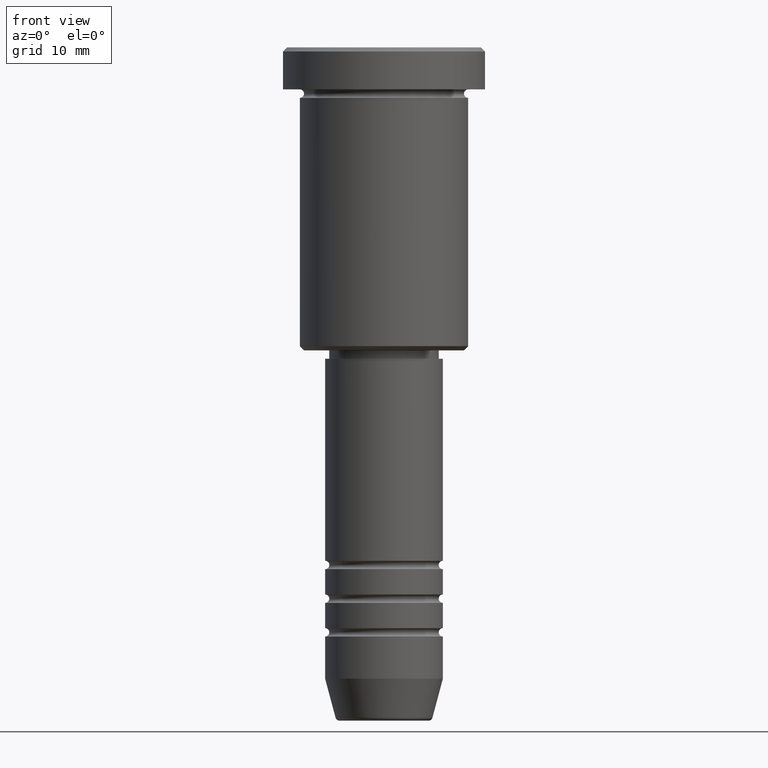
[diagram: clean part render]
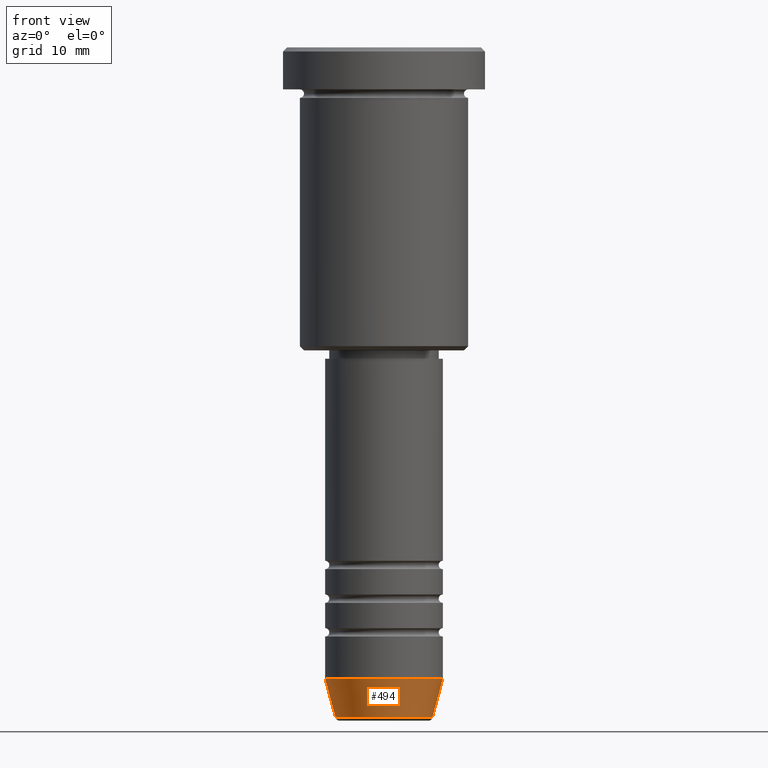
[diagram: same view with one face highlighted and labeled with its STEP entity id]
A machine part, front view. The second image highlights one B-rep face of the part: STEP entity #494.
In plain terms, the highlighted conical surface has half-angle 15 deg.
Its self-contained STEP definition (entity closure, byte-faithful):
#27 = DIRECTION ( 'NONE',  ( 1.000000000000000000, 0.000000000000000000, 0.000000000000000000 ) ) ;
#29 = ORIENTED_EDGE ( 'NONE', *, *, #134, .T. ) ;
#61 = DIRECTION ( 'NONE',  ( -0.000000000000000000, -0.000000000000000000, 1.000000000000000000 ) ) ;
#124 = DIRECTION ( 'NONE',  ( 0.2588190451025213501, 0.000000000000000000, 0.9659258262890680902 ) ) ;
#134 = EDGE_CURVE ( 'NONE', #442, #781, #571, .T. ) ;
#165 = VERTEX_POINT ( 'NONE', #834 ) ;
#196 = LINE ( 'NONE', #717, #670 ) ;
#225 = VECTOR ( 'NONE', #124, 1000.000000000000000 ) ;
#269 = CARTESIAN_POINT ( 'NONE',  ( 5.759553456999441323, 0.000000000000000000, -79.62940952255125637 ) ) ;
#283 = FACE_OUTER_BOUND ( 'NONE', #987, .T. ) ;
#322 = DIRECTION ( 'NONE',  ( -0.000000000000000000, -0.000000000000000000, 1.000000000000000000 ) ) ;
#363 = DIRECTION ( 'NONE',  ( -0.2588190451025213501, 3.169619151431772337E-17, 0.9659258262890680902 ) ) ;
#442 = VERTEX_POINT ( 'NONE', #848 ) ;
#477 = AXIS2_PLACEMENT_3D ( 'NONE', #802, #61, #985 ) ;
#494 = ADVANCED_FACE ( 'NONE', ( #283 ), #954, .T. ) ;
#571 = CIRCLE ( 'NONE', #976, 5.759553456999441323 ) ;
#582 = DIRECTION ( 'NONE',  ( 1.000000000000000000, 0.000000000000000000, 0.000000000000000000 ) ) ;
#637 = ORIENTED_EDGE ( 'NONE', *, *, #713, .F. ) ;
#652 = EDGE_CURVE ( 'NONE', #165, #706, #1083, .T. ) ;
#654 = CARTESIAN_POINT ( 'NONE',  ( 7.000000000000000888, 0.000000000000000000, -75.00000000000001421 ) ) ;
#665 = CARTESIAN_POINT ( 'NONE',  ( 7.000000000000000888, 0.000000000000000000, -75.00000000000001421 ) ) ;
#670 = VECTOR ( 'NONE', #363, 1000.000000000000000 ) ;
#693 = ORIENTED_EDGE ( 'NONE', *, *, #652, .F. ) ;
#706 = VERTEX_POINT ( 'NONE', #654 ) ;
#713 = EDGE_CURVE ( 'NONE', #442, #165, #196, .T. ) ;
#717 = CARTESIAN_POINT ( 'NONE',  ( -7.000000000000000888, 8.572527594031474176E-16, -75.00000000000001421 ) ) ;
#781 = VERTEX_POINT ( 'NONE', #269 ) ;
#802 = CARTESIAN_POINT ( 'NONE',  ( 0.000000000000000000, 0.000000000000000000, -75.00000000000001421 ) ) ;
#834 = CARTESIAN_POINT ( 'NONE',  ( -7.000000000000000888, 8.572527594031474176E-16, -75.00000000000001421 ) ) ;
#848 = CARTESIAN_POINT ( 'NONE',  ( -5.759553456999441323, 7.812973149831956703E-16, -79.62940952255125637 ) ) ;
#849 = ORIENTED_EDGE ( 'NONE', *, *, #947, .T. ) ;
#888 = AXIS2_PLACEMENT_3D ( 'NONE', #1027, #1043, #582 ) ;
#947 = EDGE_CURVE ( 'NONE', #781, #706, #1110, .T. ) ;
#954 = CONICAL_SURFACE ( 'NONE', #888, 7.000000000000000888, 0.2617993877991500740 ) ;
#963 = CARTESIAN_POINT ( 'NONE',  ( 0.000000000000000000, 0.000000000000000000, -79.62940952255125637 ) ) ;
#976 = AXIS2_PLACEMENT_3D ( 'NONE', #963, #322, #27 ) ;
#985 = DIRECTION ( 'NONE',  ( 1.000000000000000000, 0.000000000000000000, 0.000000000000000000 ) ) ;
#987 = EDGE_LOOP ( 'NONE', ( #637, #29, #849, #693 ) ) ;
#1027 = CARTESIAN_POINT ( 'NONE',  ( 0.000000000000000000, 0.000000000000000000, -75.00000000000001421 ) ) ;
#1043 = DIRECTION ( 'NONE',  ( -0.000000000000000000, -0.000000000000000000, 1.000000000000000000 ) ) ;
#1083 = CIRCLE ( 'NONE', #477, 7.000000000000000888 ) ;
#1110 = LINE ( 'NONE', #665, #225 ) ;